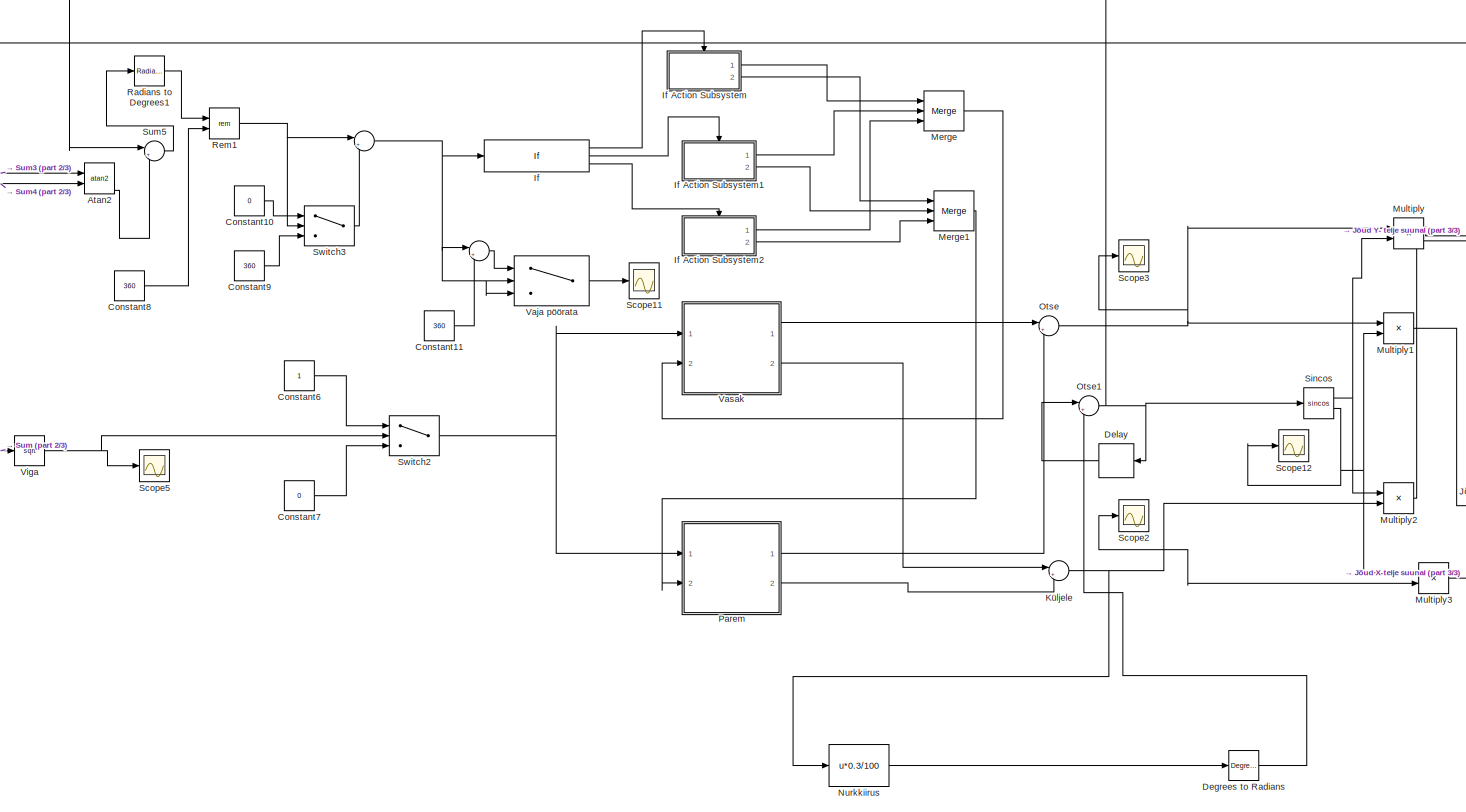
[diagram: root canvas - part 1/3, center side, full height]
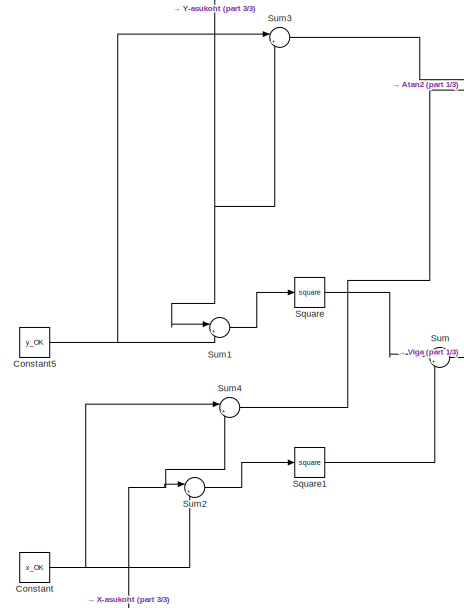
[diagram: root canvas - part 2/3, middle left region]
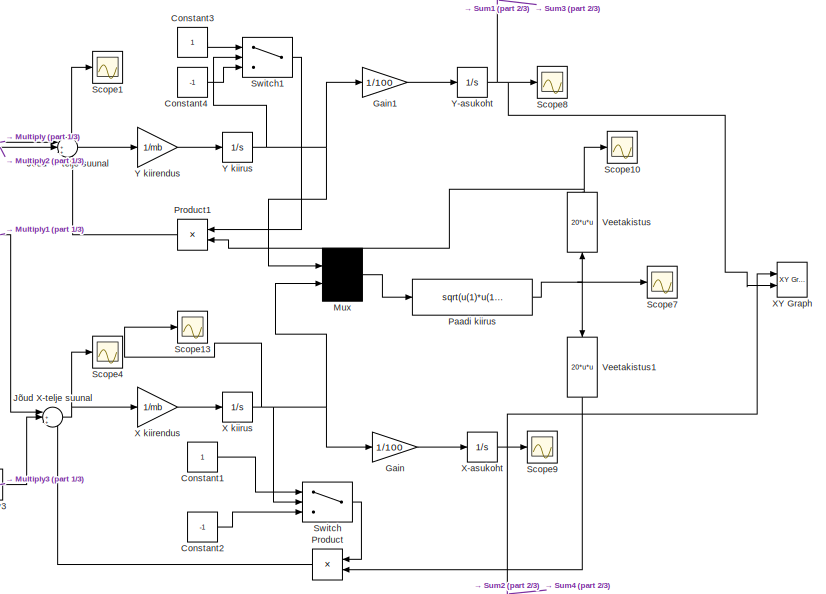
[diagram: root canvas - part 3/3, middle right region]
MODEL slx_333646adffce
KIND model
CONFIG AbsTol = auto
CONFIG EnableMultiTasking = off
CONFIG FixedStep = 1
CONFIG MaxStep = auto
CONFIG MinStep = auto
CONFIG RelTol = 1e-3
CONFIG SampleTimeConstraint = Unconstrained
CONFIG Solver = FixedStepAuto
CONFIG SolverName = FixedStepAuto
CONFIG StartTime = 0.0
CONFIG StopTime = 30000
BLOCK [Sum]  
  IconShape = round
  InputSameDT = off
  Inputs = |++
  OutDataTypeStr = Inherit: Inherit via internal rule
  Ports = [2, 1]
  SaturateOnIntegerOverflow = off
BLOCK [Trigonometry] Atan2
  Operator = atan2
  Ports = [2, 1]
BLOCK [Constant] Constant
  Value = x_OK
BLOCK [Constant] Constant1
BLOCK [Constant] Constant10
  Value = 0
BLOCK [Constant] Constant11
  Value = 360
BLOCK [Constant] Constant2
  Value = -1
BLOCK [Constant] Constant3
BLOCK [Constant] Constant4
  Value = -1
BLOCK [Constant] Constant5
  Value = y_OK
BLOCK [Constant] Constant6
BLOCK [Constant] Constant7
  Value = 0
BLOCK [Constant] Constant8
  Value = 360
BLOCK [Constant] Constant9
  Value = 360
BLOCK [Reference] Degrees to Radians  REF=simulink_extras/Transformations/Degrees to
Radians
  Ports = [1, 1]
  SourceBlock = simulink_extras/Transformations/Degrees to\nRadians
  SourceProductBaseCode = SL
  SourceProductName = Simulink
  SourceType = DegreesToRadians
BLOCK [Delay] Delay
  DelayLength = 1
  InitialCondition = nurk
  InputPortMap = u0
  Ports = [1, 1]
BLOCK [Gain] Gain
  Gain = 1/100
  OutDataTypeStr = Inherit: Inherit via internal rule
  ParamDataTypeStr = Inherit: Inherit via internal rule
  SaturateOnIntegerOverflow = off
BLOCK [Gain] Gain1
  Gain = 1/100
  OutDataTypeStr = Inherit: Inherit via internal rule
  ParamDataTypeStr = Inherit: Inherit via internal rule
  SaturateOnIntegerOverflow = off
BLOCK [If] If
  ElseIfExpressions = u1 >= 180
  IfExpression = u1 < 1 | u1 >359
  Ports = [1, 3]
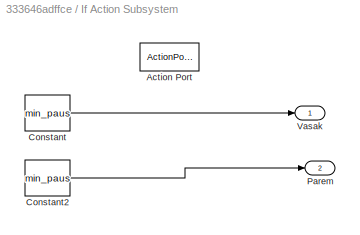
BLOCK [SubSystem] If Action Subsystem
  Ports = [0, 2, 0, 0, 0, 0, 0, 1]
  RequestExecContextInheritance = off
  TreatAsAtomicUnit = on
BLOCK [ActionPort] If Action Subsystem/Action Port
  ActionPortLabel = if(u1 < 1 | u1 >359)
BLOCK [Constant] If Action Subsystem/Constant
  Value = min_paus
BLOCK [Constant] If Action Subsystem/Constant2
  Value = min_paus
BLOCK [Outport] If Action Subsystem/Parem
  IconDisplay = Port number
  Port = 2
BLOCK [Outport] If Action Subsystem/Vasak
  IconDisplay = Port number
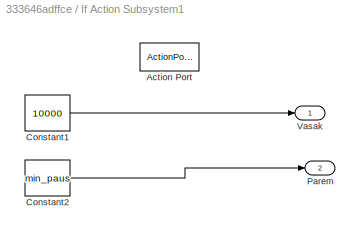
BLOCK [SubSystem] If Action Subsystem1
  Ports = [0, 2, 0, 0, 0, 0, 0, 1]
  RequestExecContextInheritance = off
  TreatAsAtomicUnit = on
BLOCK [ActionPort] If Action Subsystem1/Action Port
  ActionPortLabel = elseif(u1 >= 180)
BLOCK [Constant] If Action Subsystem1/Constant1
  Value = 10000
BLOCK [Constant] If Action Subsystem1/Constant2
  Value = min_paus
BLOCK [Outport] If Action Subsystem1/Parem
  IconDisplay = Port number
  Port = 2
BLOCK [Outport] If Action Subsystem1/Vasak
  IconDisplay = Port number
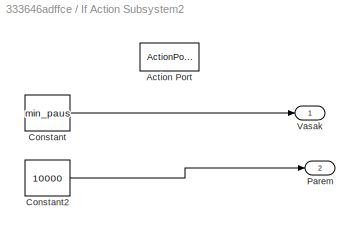
BLOCK [SubSystem] If Action Subsystem2
  Ports = [0, 2, 0, 0, 0, 0, 0, 1]
  RequestExecContextInheritance = off
  TreatAsAtomicUnit = on
BLOCK [ActionPort] If Action Subsystem2/Action Port
  ActionPortLabel = else
BLOCK [Constant] If Action Subsystem2/Constant
  Value = min_paus
BLOCK [Constant] If Action Subsystem2/Constant2
  Value = 10000
BLOCK [Outport] If Action Subsystem2/Parem
  IconDisplay = Port number
  Port = 2
BLOCK [Outport] If Action Subsystem2/Vasak
  IconDisplay = Port number
BLOCK [Sum] Jõud X-telje suunal
  IconShape = round
  InputSameDT = off
  Inputs = |++-
  OutDataTypeStr = Inherit: Inherit via internal rule
  Ports = [3, 1]
  SaturateOnIntegerOverflow = off
BLOCK [Sum] Jõud Y- telje suunal
  IconShape = round
  InputSameDT = off
  Inputs = |++-
  OutDataTypeStr = Inherit: Inherit via internal rule
  Ports = [3, 1]
  SaturateOnIntegerOverflow = off
BLOCK [Sum] Küljele
  IconShape = round
  InputSameDT = off
  Inputs = |++
  OutDataTypeStr = Inherit: Inherit via internal rule
  Ports = [2, 1]
  SaturateOnIntegerOverflow = off
BLOCK [Merge] Merge
  Inputs = 3
  Ports = [3, 1]
BLOCK [Merge] Merge1
  Inputs = 3
  Ports = [3, 1]
BLOCK [Product] Multiply
  InputSameDT = off
  OutDataTypeStr = Inherit: Inherit via internal rule
  Ports = [2, 1]
  RndMeth = Floor
  SaturateOnIntegerOverflow = off
BLOCK [Product] Multiply1
  InputSameDT = off
  OutDataTypeStr = Inherit: Inherit via internal rule
  Ports = [2, 1]
  RndMeth = Floor
  SaturateOnIntegerOverflow = off
BLOCK [Product] Multiply2
  InputSameDT = off
  OutDataTypeStr = Inherit: Inherit via internal rule
  Ports = [2, 1]
  RndMeth = Floor
  SaturateOnIntegerOverflow = off
BLOCK [Product] Multiply3
  InputSameDT = off
  OutDataTypeStr = Inherit: Inherit via internal rule
  Ports = [2, 1]
  RndMeth = Floor
  SaturateOnIntegerOverflow = off
BLOCK [Mux] Mux
  DisplayOption = signals
  Inputs = 2
  Ports = [2, 1]
BLOCK [Fcn] Nurkkiirus
  Expr = u*0.3/100
BLOCK [Sum] Otse
  IconShape = round
  InputSameDT = off
  Inputs = |++
  OutDataTypeStr = Inherit: Inherit via internal rule
  Ports = [2, 1]
  SaturateOnIntegerOverflow = off
BLOCK [Sum] Otse1
  IconShape = round
  InputSameDT = off
  Inputs = |++
  OutDataTypeStr = Inherit: Inherit via internal rule
  Ports = [2, 1]
  SaturateOnIntegerOverflow = off
BLOCK [Fcn] Paadi kiirus
  Expr = sqrt(u(1)*u(1)+u(2)*u(2))
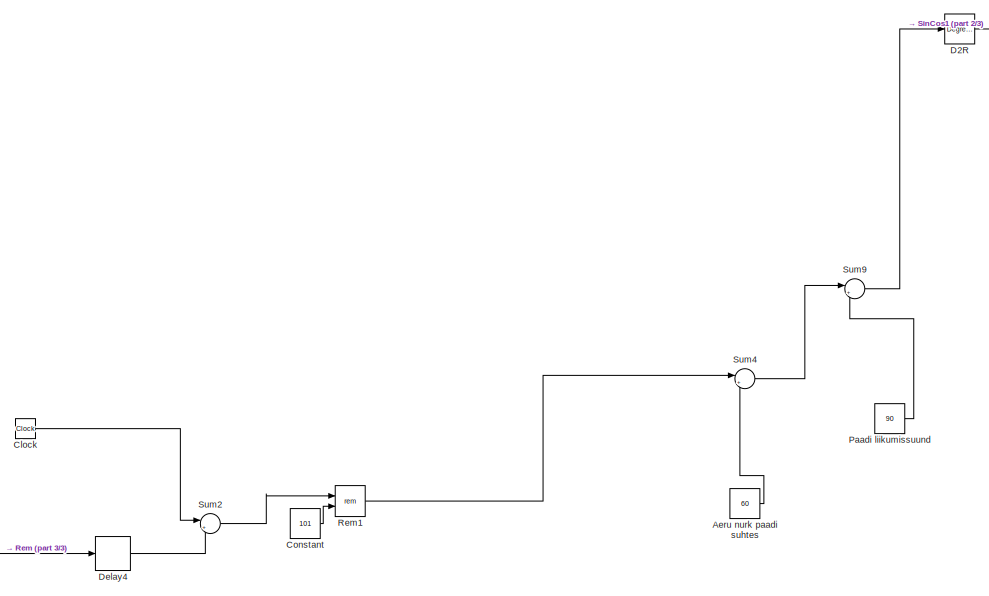
[diagram: Parem - part 1/3, top center region]
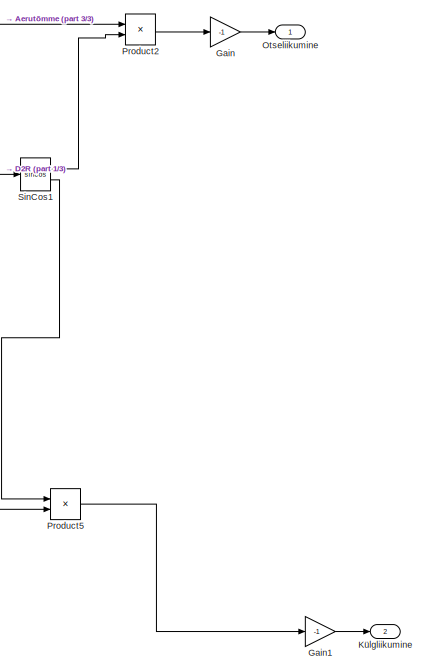
[diagram: Parem - part 2/3, bottom right region]
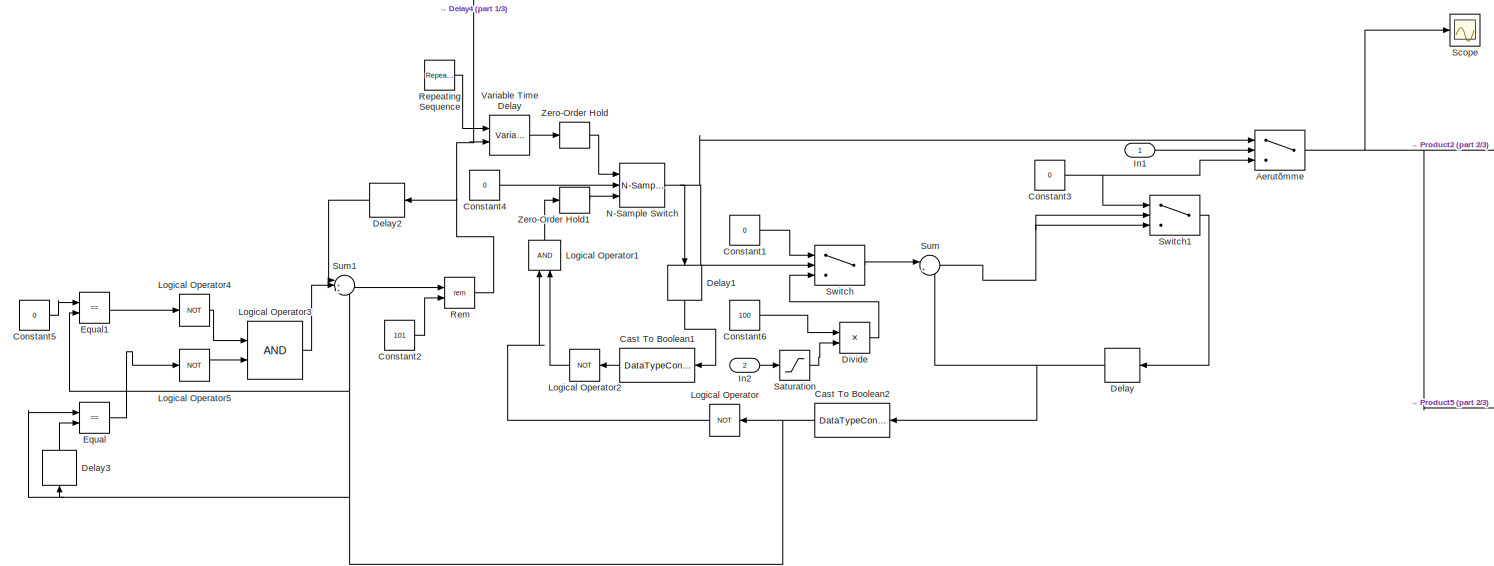
[diagram: Parem - part 3/3, full width, bottom band]
BLOCK [SubSystem] Parem
  Ports = [2, 2]
  RequestExecContextInheritance = off
BLOCK [Constant] Parem/Aeru nurk paadi suhtes
  SampleTime = 1
  Value = 60
BLOCK [Switch] Parem/Aerutõmme
  InputSameDT = off
  SaturateOnIntegerOverflow = off
  Threshold = 1
BLOCK [DataTypeConversion] Parem/Cast To Boolean1
  OutDataTypeStr = boolean
  RndMeth = Floor
  SaturateOnIntegerOverflow = off
BLOCK [DataTypeConversion] Parem/Cast To Boolean2
  OutDataTypeStr = boolean
  RndMeth = Floor
  SaturateOnIntegerOverflow = off
BLOCK [Clock] Parem/Clock
BLOCK [Constant] Parem/Constant
  Value = 101
BLOCK [Constant] Parem/Constant1
  Value = 0
BLOCK [Constant] Parem/Constant2
  SampleTime = 1
  Value = 101
BLOCK [Constant] Parem/Constant3
  Value = 0
BLOCK [Constant] Parem/Constant4
  SampleTime = 1
  Value = 0
BLOCK [Constant] Parem/Constant5
  Value = 0
BLOCK [Constant] Parem/Constant6
  SampleTime = 1
  Value = 100
BLOCK [Reference] Parem/D2R  REF=simulink_extras/Transformations/Degrees to
Radians
  Ports = [1, 1]
  SourceBlock = simulink_extras/Transformations/Degrees to\nRadians
  SourceProductBaseCode = SL
  SourceProductName = Simulink
  SourceType = DegreesToRadians
BLOCK [Delay] Parem/Delay
  DelayLength = 1
  InitialCondition = 0
  InputPortMap = u0
  Ports = [1, 1]
BLOCK [Delay] Parem/Delay1
  DelayLength = 1
  InitialCondition = 0
  InputPortMap = u0
  Ports = [1, 1]
BLOCK [Delay] Parem/Delay2
  DelayLength = 1
  InitialCondition = 0
  InputPortMap = u0
  Ports = [1, 1]
BLOCK [Delay] Parem/Delay3
  DelayLength = 1
  InitialCondition = 0
  InputPortMap = u0
  Ports = [1, 1]
BLOCK [Delay] Parem/Delay4
  DelayLength = 1
  InitialCondition = 0
  InputPortMap = u0
  Ports = [1, 1]
BLOCK [Product] Parem/Divide
  InputSameDT = off
  Inputs = */
  OutDataTypeStr = Inherit: Inherit via internal rule
  Ports = [2, 1]
  RndMeth = Floor
  SaturateOnIntegerOverflow = off
BLOCK [RelationalOperator] Parem/Equal
  InputSameDT = off
  Operator = ==
  OutDataTypeStr = boolean
  Ports = [2, 1]
  RndMeth = Simplest
BLOCK [RelationalOperator] Parem/Equal1
  InputSameDT = off
  Operator = ==
  OutDataTypeStr = boolean
  Ports = [2, 1]
  RndMeth = Simplest
BLOCK [Gain] Parem/Gain
  Gain = -1
  OutDataTypeStr = Inherit: Inherit via internal rule
  ParamDataTypeStr = Inherit: Inherit via internal rule
  SaturateOnIntegerOverflow = off
BLOCK [Gain] Parem/Gain1
  Gain = -1
  OutDataTypeStr = Inherit: Inherit via internal rule
  ParamDataTypeStr = Inherit: Inherit via internal rule
  SaturateOnIntegerOverflow = off
BLOCK [Inport] Parem/In1
  IconDisplay = Port number
BLOCK [Inport] Parem/In2
  IconDisplay = Port number
  Port = 2
BLOCK [Outport] Parem/Külgliikumine
  IconDisplay = Port number
  Port = 2
BLOCK [Logic] Parem/Logical Operator
  AllPortsSameDT = off
  IconShape = distinctive
  Operator = NOT
  OutDataTypeStr = boolean
  Ports = [1, 1]
BLOCK [Logic] Parem/Logical Operator1
  AllPortsSameDT = off
  IconShape = distinctive
  OutDataTypeStr = boolean
  Ports = [2, 1]
BLOCK [Logic] Parem/Logical Operator2
  AllPortsSameDT = off
  IconShape = distinctive
  Operator = NOT
  OutDataTypeStr = boolean
  Ports = [1, 1]
BLOCK [Logic] Parem/Logical Operator3
  AllPortsSameDT = off
  IconShape = distinctive
  OutDataTypeStr = boolean
  Ports = [2, 1]
BLOCK [Logic] Parem/Logical Operator4
  AllPortsSameDT = off
  IconShape = distinctive
  Operator = NOT
  OutDataTypeStr = boolean
  Ports = [1, 1]
BLOCK [Logic] Parem/Logical Operator5
  AllPortsSameDT = off
  IconShape = distinctive
  Operator = NOT
  OutDataTypeStr = boolean
  Ports = [1, 1]
BLOCK [Reference] Parem/N-Sample Switch  REF=dspswit3/N-Sample
Switch
  Ports = [3, 1]
  SourceBlock = dspswit3/N-Sample\nSwitch
  SourceProductBaseCode = DS
  SourceProductName = DSP System Toolbox
  SourceType = N-Sample Switch
BLOCK [Outport] Parem/Otseliikumine
  IconDisplay = Port number
BLOCK [Constant] Parem/Paadi liikumissuund
  SampleTime = 1
  Value = 90
BLOCK [Product] Parem/Product2
  InputSameDT = off
  OutDataTypeStr = Inherit: Inherit via internal rule
  Ports = [2, 1]
  RndMeth = Floor
  SaturateOnIntegerOverflow = off
BLOCK [Product] Parem/Product5
  InputSameDT = off
  OutDataTypeStr = Inherit: Inherit via internal rule
  Ports = [2, 1]
  RndMeth = Floor
  SaturateOnIntegerOverflow = off
BLOCK [Math] Parem/Rem
  Operator = rem
  Ports = [2, 1]
BLOCK [Math] Parem/Rem1
  Operator = rem
  Ports = [2, 1]
BLOCK [Reference] Parem/Repeating Sequence  REF=simulink/Sources/Repeating
Sequence
  Ports = [0, 1]
  SourceBlock = simulink/Sources/Repeating\nSequence
  SourceProductBaseCode = SL
  SourceProductName = Simulink
  SourceType = Repeating table
BLOCK [Saturate] Parem/Saturation
  InputPortMap = u0
  LowerLimit = min_paus
  Ports = [1, 1]
  UpperLimit = 10000
BLOCK [Scope] Parem/Scope
  Floating = off
  NumInputPorts = 1
  Ports = [1]
  ScopeSpecificationString = Simulink.scopes.TimeScopeBlockCfg('CurrentConfiguration', extmgr.ConfigurationSet(extmgr.Configuration('Core','General UI',true),extmgr.Configuration('Core','Source UI',true),extmgr.Configuration('Sources','WiredSimulink',true,'DataLoggingVariableName','ScopeData1'),extmgr.Configuration('Visuals','Time Domain',true,'SerializedDisplays',{struct('MinYLimReal','-72.85099','MaxYLimReal','876.92902','Y...<+1422ch>
BLOCK [Trigonometry] Parem/SinCos1
  Operator = sincos
  Ports = [1, 2]
BLOCK [Sum] Parem/Sum
  IconShape = round
  InputSameDT = off
  Inputs = |++
  OutDataTypeStr = Inherit: Inherit via internal rule
  Ports = [2, 1]
  SaturateOnIntegerOverflow = off
BLOCK [Sum] Parem/Sum1
  IconShape = round
  InputSameDT = off
  Inputs = |+++
  OutDataTypeStr = Inherit: Inherit via internal rule
  Ports = [3, 1]
  SaturateOnIntegerOverflow = off
BLOCK [Sum] Parem/Sum2
  IconShape = round
  InputSameDT = off
  Inputs = |+-
  OutDataTypeStr = Inherit: Inherit via internal rule
  Ports = [2, 1]
  SaturateOnIntegerOverflow = off
BLOCK [Sum] Parem/Sum4
  IconShape = round
  InputSameDT = off
  Inputs = |+-
  OutDataTypeStr = Inherit: Inherit via internal rule
  Ports = [2, 1]
  SaturateOnIntegerOverflow = off
BLOCK [Sum] Parem/Sum9
  IconShape = round
  InputSameDT = off
  Inputs = |+-
  OutDataTypeStr = Inherit: Inherit via internal rule
  Ports = [2, 1]
  SaturateOnIntegerOverflow = off
BLOCK [Switch] Parem/Switch
  Criteria = u2 > Threshold
  InputSameDT = off
  SaturateOnIntegerOverflow = off
BLOCK [Switch] Parem/Switch1
  Criteria = u2 > Threshold
  InputSameDT = off
  SaturateOnIntegerOverflow = off
  Threshold = 100
BLOCK [VariableTransportDelay] Parem/Variable Time Delay
  MaximumDelay = 200
  MaximumPoints = 256
  Ports = [2, 1]
  ZeroDelay = on
BLOCK [ZeroOrderHold] Parem/Zero-Order Hold
BLOCK [ZeroOrderHold] Parem/Zero-Order Hold1
BLOCK [Product] Product
  InputSameDT = off
  OutDataTypeStr = Inherit: Inherit via internal rule
  Ports = [2, 1]
  RndMeth = Floor
  SaturateOnIntegerOverflow = off
BLOCK [Product] Product1
  InputSameDT = off
  OutDataTypeStr = Inherit: Inherit via internal rule
  Ports = [2, 1]
  RndMeth = Floor
  SaturateOnIntegerOverflow = off
BLOCK [Reference] Radians to Degrees1  REF=simulink_extras/Transformations/Radians
to Degrees
  Ports = [1, 1]
  SourceBlock = simulink_extras/Transformations/Radians\nto Degrees
  SourceProductBaseCode = SL
  SourceProductName = Simulink
  SourceType = RadiansToDegrees
BLOCK [Math] Rem1
  Operator = rem
  Ports = [2, 1]
BLOCK [Scope] Scope1
  Floating = off
  NumInputPorts = 1
  Ports = [1]
  ScopeSpecificationString = Simulink.scopes.TimeScopeBlockCfg('CurrentConfiguration', extmgr.ConfigurationSet(extmgr.Configuration('Core','General UI',true),extmgr.Configuration('Core','Source UI',true),extmgr.Configuration('Sources','WiredSimulink',true,'DataLoggingVariableName','ScopeData1'),extmgr.Configuration('Visuals','Time Domain',true,'SerializedDisplays',{struct('MinYLimReal','-1211.15544','MaxYLimReal','1277.60618'...<+1443ch>
BLOCK [Scope] Scope10
  Floating = off
  NumInputPorts = 1
  Ports = [1]
  ScopeSpecificationString = Simulink.scopes.TimeScopeBlockCfg('CurrentConfiguration', extmgr.ConfigurationSet(extmgr.Configuration('Core','General UI',true),extmgr.Configuration('Core','Source UI',true),extmgr.Configuration('Sources','WiredSimulink',true,'DataLoggingVariableName','ScopeData8'),extmgr.Configuration('Visuals','Time Domain',true,'SerializedDisplays',{struct('MinYLimReal','-95.93174','MaxYLimReal','863.38568','Y...<+1422ch>
BLOCK [Scope] Scope11
  Floating = off
  NumInputPorts = 1
  Ports = [1]
  ScopeSpecificationString = Simulink.scopes.TimeScopeBlockCfg('CurrentConfiguration', extmgr.ConfigurationSet(extmgr.Configuration('Core','General UI',true),extmgr.Configuration('Core','Source UI',true),extmgr.Configuration('Sources','WiredSimulink',true,'DataLoggingVariableName','ScopeData2'),extmgr.Configuration('Visuals','Time Domain',true,'SerializedDisplays',{struct('MinYLimReal','-44.86536','MaxYLimReal','404.92027','Y...<+1451ch>
BLOCK [Scope] Scope12
  Floating = off
  NumInputPorts = 1
  Ports = [1]
  ScopeSpecificationString = Simulink.scopes.TimeScopeBlockCfg('CurrentConfiguration', extmgr.ConfigurationSet(extmgr.Configuration('Core','General UI',true),extmgr.Configuration('Core','Source UI',true),extmgr.Configuration('Sources','WiredSimulink',true,'DataLoggingVariableName','ScopeData10'),extmgr.Configuration('Visuals','Time Domain',true,'SerializedDisplays',{struct('MinYLimReal','-1.09939','MaxYLimReal','-0.89939','YL...<+1440ch>
BLOCK [Scope] Scope13
  Floating = off
  NumInputPorts = 1
  Ports = [1]
  ScopeSpecificationString = Simulink.scopes.TimeScopeBlockCfg('CurrentConfiguration', extmgr.ConfigurationSet(extmgr.Configuration('Core','General UI',true),extmgr.Configuration('Core','Source UI',true),extmgr.Configuration('Sources','WiredSimulink',true,'DataLoggingVariableName','ScopeData11'),extmgr.Configuration('Visuals','Time Domain',true,'SerializedDisplays',{struct('MinYLimReal','-4.09995','MaxYLimReal','4.09998','YLa...<+1439ch>
BLOCK [Scope] Scope2
  Floating = off
  NumInputPorts = 1
  Ports = [1]
  ScopeSpecificationString = Simulink.scopes.TimeScopeBlockCfg('CurrentConfiguration', extmgr.ConfigurationSet(extmgr.Configuration('Core','General UI',true),extmgr.Configuration('Core','Source UI',true),extmgr.Configuration('Sources','WiredSimulink',true,'DataLoggingVariableName','ScopeData4'),extmgr.Configuration('Visuals','Time Domain',true,'SerializedDisplays',{struct('MinYLimReal','-1.00000','MaxYLimReal','1.00000','YLab...<+1408ch>
BLOCK [Scope] Scope3
  Floating = off
  NumInputPorts = 1
  Ports = [1]
  ScopeSpecificationString = Simulink.scopes.TimeScopeBlockCfg('CurrentConfiguration', extmgr.ConfigurationSet(extmgr.Configuration('Core','General UI',true),extmgr.Configuration('Core','Source UI',true),extmgr.Configuration('Sources','WiredSimulink',true,'DataLoggingVariableName','ScopeData5'),extmgr.Configuration('Visuals','Time Domain',true,'SerializedDisplays',{struct('MinYLimReal','-2114.67788','MaxYLimReal','1975.31515'...<+1427ch>
BLOCK [Scope] Scope4
  Floating = off
  NumInputPorts = 1
  Ports = [1]
  ScopeSpecificationString = Simulink.scopes.TimeScopeBlockCfg('CurrentConfiguration', extmgr.ConfigurationSet(extmgr.Configuration('Core','General UI',true),extmgr.Configuration('Core','Source UI',true),extmgr.Configuration('Sources','WiredSimulink',true,'DataLoggingVariableName','ScopeData2'),extmgr.Configuration('Visuals','Time Domain',true,'SerializedDisplays',{struct('MinYLimReal','-734.17654','MaxYLimReal','860.71135','...<+1463ch>
BLOCK [Scope] Scope5
  Floating = off
  NumInputPorts = 1
  Ports = [1]
  ScopeSpecificationString = Simulink.scopes.TimeScopeBlockCfg('CurrentConfiguration', extmgr.ConfigurationSet(extmgr.Configuration('Core','General UI',true),extmgr.Configuration('Core','Source UI',true),extmgr.Configuration('Sources','WiredSimulink',true,'DataLoggingVariableName','ScopeData1'),extmgr.Configuration('Visuals','Time Domain',true,'SerializedDisplays',{struct('MinYLimReal','-5.96058','MaxYLimReal','111.7734','YLa...<+1437ch>
BLOCK [Scope] Scope7
  Floating = off
  NumInputPorts = 1
  Ports = [1]
  ScopeSpecificationString = Simulink.scopes.TimeScopeBlockCfg('CurrentConfiguration', extmgr.ConfigurationSet(extmgr.Configuration('Core','General UI',true),extmgr.Configuration('Core','Source UI',true),extmgr.Configuration('Sources','WiredSimulink',true,'DataLoggingVariableName','ScopeData5'),extmgr.Configuration('Visuals','Time Domain',true,'SerializedDisplays',{struct('MinYLimReal','-0.88144','MaxYLimReal','7.93294','YLab...<+1413ch>
BLOCK [Scope] Scope8
  Floating = off
  NumInputPorts = 1
  Ports = [1]
  ScopeSpecificationString = Simulink.scopes.TimeScopeBlockCfg('CurrentConfiguration', extmgr.ConfigurationSet(extmgr.Configuration('Core','General UI',true),extmgr.Configuration('Core','Source UI',true),extmgr.Configuration('Sources','WiredSimulink',true,'DataLoggingVariableName','ScopeData6'),extmgr.Configuration('Visuals','Time Domain',true,'SerializedDisplays',{struct('MinYLimReal','-25.73634','MaxYLimReal','2.85959','YLa...<+1414ch>
BLOCK [Scope] Scope9
  Floating = off
  NumInputPorts = 1
  Ports = [1]
  ScopeSpecificationString = Simulink.scopes.TimeScopeBlockCfg('CurrentConfiguration', extmgr.ConfigurationSet(extmgr.Configuration('Core','General UI',true),extmgr.Configuration('Core','Source UI',true),extmgr.Configuration('Sources','WiredSimulink',true,'DataLoggingVariableName','ScopeData7'),extmgr.Configuration('Visuals','Time Domain',true,'SerializedDisplays',{struct('MinYLimReal','-523.06945','MaxYLimReal','170.62756','...<+1452ch>
BLOCK [Trigonometry] Sincos
  Operator = sincos
  Ports = [1, 2]
BLOCK [Math] Square
  Operator = square
  Ports = [1, 1]
BLOCK [Math] Square1
  Operator = square
  Ports = [1, 1]
BLOCK [Sum] Sum
  IconShape = round
  InputSameDT = off
  Inputs = |++
  OutDataTypeStr = Inherit: Inherit via internal rule
  Ports = [2, 1]
  SaturateOnIntegerOverflow = off
BLOCK [Sum] Sum1
  IconShape = round
  InputSameDT = off
  Inputs = |+-
  OutDataTypeStr = Inherit: Inherit via internal rule
  Ports = [2, 1]
  SaturateOnIntegerOverflow = off
BLOCK [Sum] Sum2
  IconShape = round
  InputSameDT = off
  Inputs = |+-
  OutDataTypeStr = Inherit: Inherit via internal rule
  Ports = [2, 1]
  SaturateOnIntegerOverflow = off
BLOCK [Sum] Sum3
  IconShape = round
  InputSameDT = off
  Inputs = |+-
  OutDataTypeStr = Inherit: Inherit via internal rule
  Ports = [2, 1]
  SaturateOnIntegerOverflow = off
BLOCK [Sum] Sum4
  IconShape = round
  InputSameDT = off
  Inputs = |+-
  OutDataTypeStr = Inherit: Inherit via internal rule
  Ports = [2, 1]
  SaturateOnIntegerOverflow = off
BLOCK [Sum] Sum5
  IconShape = round
  InputSameDT = off
  Inputs = |+-
  OutDataTypeStr = Inherit: Inherit via internal rule
  Ports = [2, 1]
  SaturateOnIntegerOverflow = off
BLOCK [Switch] Switch
  InputSameDT = off
  SaturateOnIntegerOverflow = off
BLOCK [Switch] Switch1
  InputSameDT = off
  SaturateOnIntegerOverflow = off
BLOCK [Switch] Switch2
  InputSameDT = off
  SaturateOnIntegerOverflow = off
  Threshold = 25
BLOCK [Switch] Switch3
  Criteria = u2 > Threshold
  InputSameDT = off
  SaturateOnIntegerOverflow = off
BLOCK [Switch] Vaja pöörata
  Criteria = u2 > Threshold
  InputSameDT = off
  SaturateOnIntegerOverflow = off
  Threshold = 180
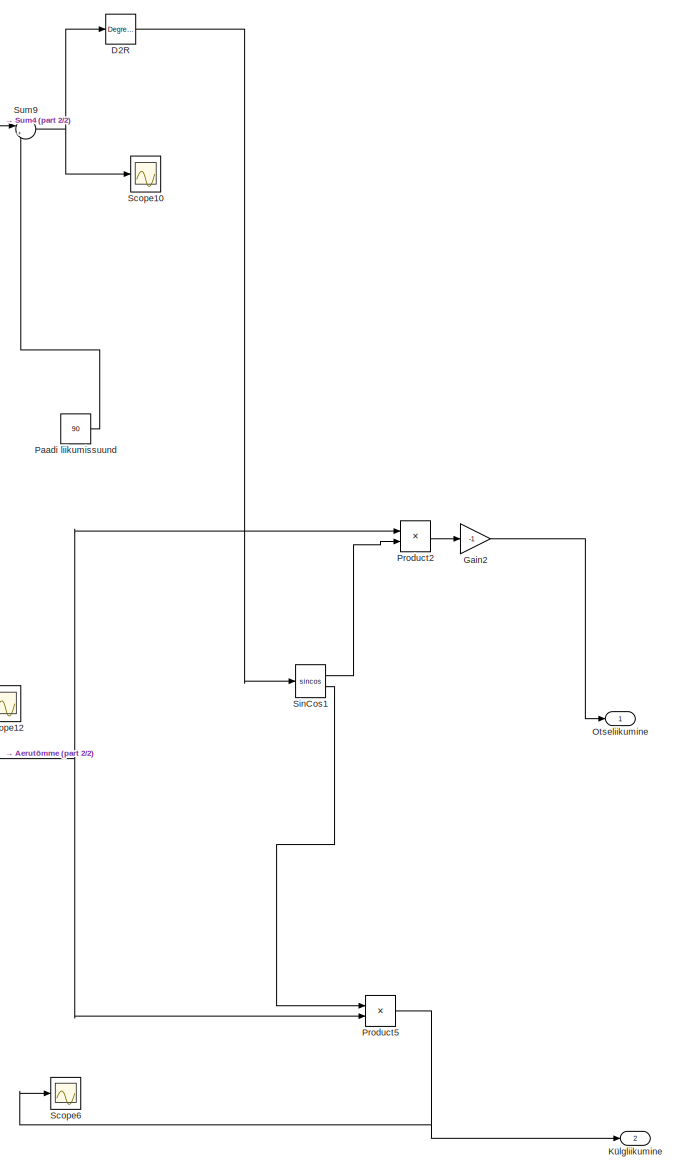
[diagram: Vasak - part 1/2, right side, full height]
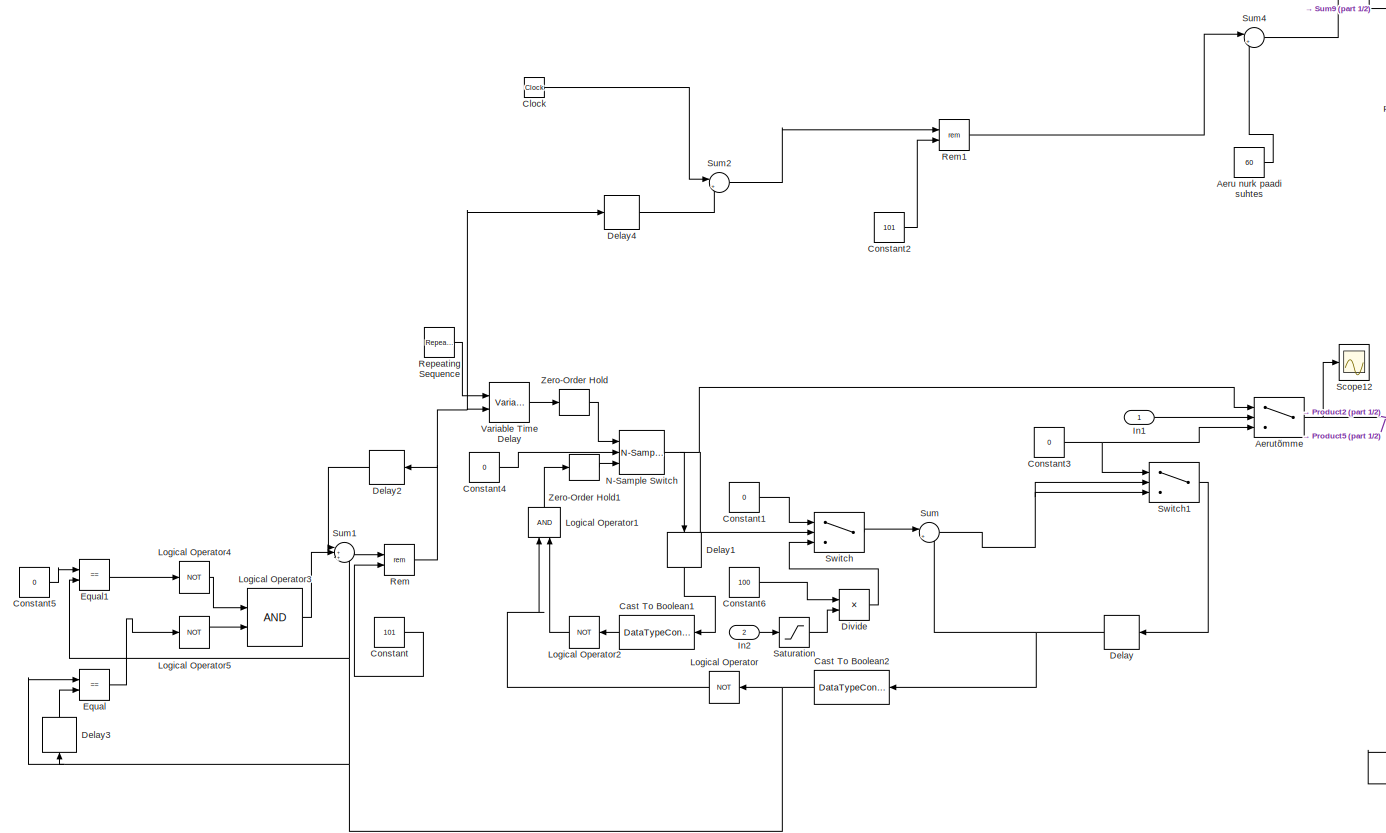
[diagram: Vasak - part 2/2, central region]
BLOCK [SubSystem] Vasak
  Ports = [2, 2]
  RequestExecContextInheritance = off
BLOCK [Constant] Vasak/Aeru nurk paadi suhtes
  SampleTime = 1
  Value = 60
BLOCK [Switch] Vasak/Aerutõmme
  InputSameDT = off
  SaturateOnIntegerOverflow = off
  Threshold = 1
BLOCK [DataTypeConversion] Vasak/Cast To Boolean1
  OutDataTypeStr = boolean
  RndMeth = Floor
  SaturateOnIntegerOverflow = off
BLOCK [DataTypeConversion] Vasak/Cast To Boolean2
  OutDataTypeStr = boolean
  RndMeth = Floor
  SaturateOnIntegerOverflow = off
BLOCK [Clock] Vasak/Clock
BLOCK [Constant] Vasak/Constant
  Value = 101
BLOCK [Constant] Vasak/Constant1
  Value = 0
BLOCK [Constant] Vasak/Constant2
  Value = 101
BLOCK [Constant] Vasak/Constant3
  Value = 0
BLOCK [Constant] Vasak/Constant4
  Value = 0
BLOCK [Constant] Vasak/Constant5
  Value = 0
BLOCK [Constant] Vasak/Constant6
  SampleTime = 1
  Value = 100
BLOCK [Reference] Vasak/D2R  REF=simulink_extras/Transformations/Degrees to
Radians
  Ports = [1, 1]
  SourceBlock = simulink_extras/Transformations/Degrees to\nRadians
  SourceProductBaseCode = SL
  SourceProductName = Simulink
  SourceType = DegreesToRadians
BLOCK [Delay] Vasak/Delay
  DelayLength = 1
  InitialCondition = 0
  InputPortMap = u0
  Ports = [1, 1]
BLOCK [Delay] Vasak/Delay1
  DelayLength = 1
  InitialCondition = 0
  InputPortMap = u0
  Ports = [1, 1]
BLOCK [Delay] Vasak/Delay2
  DelayLength = 1
  InitialCondition = 0
  InputPortMap = u0
  Ports = [1, 1]
BLOCK [Delay] Vasak/Delay3
  DelayLength = 1
  InitialCondition = 0
  InputPortMap = u0
  Ports = [1, 1]
BLOCK [Delay] Vasak/Delay4
  DelayLength = 1
  InitialCondition = 0
  InputPortMap = u0
  Ports = [1, 1]
BLOCK [Product] Vasak/Divide
  InputSameDT = off
  Inputs = */
  OutDataTypeStr = Inherit: Inherit via internal rule
  Ports = [2, 1]
  RndMeth = Floor
  SaturateOnIntegerOverflow = off
BLOCK [RelationalOperator] Vasak/Equal
  InputSameDT = off
  Operator = ==
  OutDataTypeStr = boolean
  Ports = [2, 1]
  RndMeth = Simplest
BLOCK [RelationalOperator] Vasak/Equal1
  InputSameDT = off
  Operator = ==
  OutDataTypeStr = boolean
  Ports = [2, 1]
  RndMeth = Simplest
BLOCK [Gain] Vasak/Gain2
  Gain = -1
  OutDataTypeStr = Inherit: Inherit via internal rule
  ParamDataTypeStr = Inherit: Inherit via internal rule
  SaturateOnIntegerOverflow = off
BLOCK [Inport] Vasak/In1
  IconDisplay = Port number
BLOCK [Inport] Vasak/In2
  IconDisplay = Port number
  Port = 2
BLOCK [Outport] Vasak/Külgliikumine
  IconDisplay = Port number
  Port = 2
BLOCK [Logic] Vasak/Logical Operator
  AllPortsSameDT = off
  IconShape = distinctive
  Operator = NOT
  OutDataTypeStr = boolean
  Ports = [1, 1]
BLOCK [Logic] Vasak/Logical Operator1
  AllPortsSameDT = off
  IconShape = distinctive
  OutDataTypeStr = boolean
  Ports = [2, 1]
BLOCK [Logic] Vasak/Logical Operator2
  AllPortsSameDT = off
  IconShape = distinctive
  Operator = NOT
  OutDataTypeStr = boolean
  Ports = [1, 1]
BLOCK [Logic] Vasak/Logical Operator3
  AllPortsSameDT = off
  IconShape = distinctive
  OutDataTypeStr = boolean
  Ports = [2, 1]
BLOCK [Logic] Vasak/Logical Operator4
  AllPortsSameDT = off
  IconShape = distinctive
  Operator = NOT
  OutDataTypeStr = boolean
  Ports = [1, 1]
BLOCK [Logic] Vasak/Logical Operator5
  AllPortsSameDT = off
  IconShape = distinctive
  Operator = NOT
  OutDataTypeStr = boolean
  Ports = [1, 1]
BLOCK [Reference] Vasak/N-Sample Switch  REF=dspswit3/N-Sample
Switch
  Ports = [3, 1]
  SourceBlock = dspswit3/N-Sample\nSwitch
  SourceProductBaseCode = DS
  SourceProductName = DSP System Toolbox
  SourceType = N-Sample Switch
BLOCK [Outport] Vasak/Otseliikumine
  IconDisplay = Port number
BLOCK [Constant] Vasak/Paadi liikumissuund
  SampleTime = 1
  Value = 90
BLOCK [Product] Vasak/Product2
  InputSameDT = off
  OutDataTypeStr = Inherit: Inherit via internal rule
  Ports = [2, 1]
  RndMeth = Floor
  SaturateOnIntegerOverflow = off
BLOCK [Product] Vasak/Product5
  InputSameDT = off
  OutDataTypeStr = Inherit: Inherit via internal rule
  Ports = [2, 1]
  RndMeth = Floor
  SaturateOnIntegerOverflow = off
BLOCK [Math] Vasak/Rem
  Operator = rem
  Ports = [2, 1]
BLOCK [Math] Vasak/Rem1
  Operator = rem
  Ports = [2, 1]
BLOCK [Reference] Vasak/Repeating Sequence  REF=simulink/Sources/Repeating
Sequence
  Ports = [0, 1]
  SourceBlock = simulink/Sources/Repeating\nSequence
  SourceProductBaseCode = SL
  SourceProductName = Simulink
  SourceType = Repeating table
BLOCK [Saturate] Vasak/Saturation
  InputPortMap = u0
  LowerLimit = min_paus
  Ports = [1, 1]
  UpperLimit = 100000
BLOCK [Scope] Vasak/Scope10
  Floating = off
  NumInputPorts = 1
  Ports = [1]
  ScopeSpecificationString = Simulink.scopes.TimeScopeBlockCfg('CurrentConfiguration', extmgr.ConfigurationSet(extmgr.Configuration('Core','General UI',true),extmgr.Configuration('Core','Source UI',true),extmgr.Configuration('Sources','WiredSimulink',true,'DataLoggingVariableName','ScopeData1'),extmgr.Configuration('Visuals','Time Domain',true,'SerializedDisplays',{struct('MinYLimReal','-162.5','MaxYLimReal','-37.5','YLabelRe...<+1423ch>
BLOCK [Scope] Vasak/Scope12
  Floating = off
  NumInputPorts = 1
  Ports = [1]
  ScopeSpecificationString = Simulink.scopes.TimeScopeBlockCfg('CurrentConfiguration', extmgr.ConfigurationSet(extmgr.Configuration('Core','General UI',true),extmgr.Configuration('Core','Source UI',true),extmgr.Configuration('Sources','WiredSimulink',true,'DataLoggingVariableName','ScopeData3'),extmgr.Configuration('Visuals','Time Domain',true,'SerializedDisplays',{struct('MinYLimReal','-105.75','MaxYLimReal','951.75','YLabel...<+1434ch>
BLOCK [Scope] Vasak/Scope6
  Floating = off
  NumInputPorts = 1
  Ports = [1]
  ScopeSpecificationString = Simulink.scopes.TimeScopeBlockCfg('CurrentConfiguration', extmgr.ConfigurationSet(extmgr.Configuration('Core','General UI',true),extmgr.Configuration('Core','Source UI',true),extmgr.Configuration('Sources','WiredSimulink',true,'DataLoggingVariableName','ScopeData3'),extmgr.Configuration('Visuals','Time Domain',true,'SerializedDisplays',{struct('MinYLimReal','-397.44312','MaxYLimReal','178.00689','...<+1451ch>
BLOCK [Trigonometry] Vasak/SinCos1
  Operator = sincos
  Ports = [1, 2]
BLOCK [Sum] Vasak/Sum
  IconShape = round
  InputSameDT = off
  Inputs = |++
  OutDataTypeStr = Inherit: Inherit via internal rule
  Ports = [2, 1]
  SaturateOnIntegerOverflow = off
BLOCK [Sum] Vasak/Sum1
  IconShape = round
  InputSameDT = off
  Inputs = |+++
  OutDataTypeStr = Inherit: Inherit via internal rule
  Ports = [3, 1]
  SaturateOnIntegerOverflow = off
BLOCK [Sum] Vasak/Sum2
  IconShape = round
  InputSameDT = off
  Inputs = |+-
  OutDataTypeStr = Inherit: Inherit via internal rule
  Ports = [2, 1]
  SaturateOnIntegerOverflow = off
BLOCK [Sum] Vasak/Sum4
  IconShape = round
  InputSameDT = off
  Inputs = |+-
  OutDataTypeStr = Inherit: Inherit via internal rule
  Ports = [2, 1]
  SaturateOnIntegerOverflow = off
BLOCK [Sum] Vasak/Sum9
  IconShape = round
  InputSameDT = off
  Inputs = |+-
  OutDataTypeStr = Inherit: Inherit via internal rule
  Ports = [2, 1]
  SaturateOnIntegerOverflow = off
BLOCK [Switch] Vasak/Switch
  Criteria = u2 > Threshold
  InputSameDT = off
  SaturateOnIntegerOverflow = off
BLOCK [Switch] Vasak/Switch1
  Criteria = u2 > Threshold
  InputSameDT = off
  SaturateOnIntegerOverflow = off
  Threshold = 100
BLOCK [VariableTransportDelay] Vasak/Variable Time Delay
  MaximumDelay = 200
  MaximumPoints = 256
  Ports = [2, 1]
  ZeroDelay = on
BLOCK [ZeroOrderHold] Vasak/Zero-Order Hold
BLOCK [ZeroOrderHold] Vasak/Zero-Order Hold1
BLOCK [Fcn] Veetakistus
  Expr = 20*u*u
BLOCK [Fcn] Veetakistus1
  Expr = 20*u*u
BLOCK [Sqrt] Viga
  OutputSignalType = real
BLOCK [Gain] X kiirendus
  Gain = 1/mb
  OutDataTypeStr = Inherit: Inherit via internal rule
  ParamDataTypeStr = Inherit: Inherit via internal rule
  SaturateOnIntegerOverflow = off
BLOCK [Integrator] X kiirus
  InitialCondition = vx_0
  Ports = [1, 1]
BLOCK [Integrator] X-asukoht
  InitialCondition = x_0
  Ports = [1, 1]
BLOCK [Reference] XY Graph  REF=simulink/Sinks/XY Graph
  Commented = on
  Ports = [2]
  SourceBlock = simulink/Sinks/XY Graph
  SourceProductBaseCode = SL
  SourceProductName = Simulink
  SourceType = XY scope.
BLOCK [Gain] Y kiirendus
  Gain = 1/mb
  OutDataTypeStr = Inherit: Inherit via internal rule
  ParamDataTypeStr = Inherit: Inherit via internal rule
  SaturateOnIntegerOverflow = off
BLOCK [Integrator] Y kiirus
  InitialCondition = vy_0
  Ports = [1, 1]
BLOCK [Integrator] Y-asukoht
  InitialCondition = y_0
  Ports = [1, 1]
NET  :1 ->  :1, If:1, Vaja pöörata:1, Vaja pöörata:2, Vaja pöörata:3
LINE Atan2:1 -> Sum5:2
LINE Constant10:1 -> Switch3:1
LINE Constant11:1 ->  :2
LINE Constant1:1 -> Switch:1
LINE Constant2:1 -> Switch:3
LINE Constant3:1 -> Switch1:1
LINE Constant4:1 -> Switch1:3
NET Constant5:1 -> Sum1:2, Sum3:1
LINE Constant6:1 -> Switch2:1
LINE Constant7:1 -> Switch2:3
LINE Constant8:1 -> Rem1:2
LINE Constant9:1 -> Switch3:3
NET Constant:1 -> Sum2:2, Sum4:1
LINE Degrees to Radians:1 -> Otse1:2
LINE Delay:1 -> Otse1:1
LINE Gain1:1 -> Y-asukoht:1
LINE Gain:1 -> X-asukoht:1
LINE If Action Subsystem/Constant2:1 -> If Action Subsystem/Parem:1
LINE If Action Subsystem/Constant:1 -> If Action Subsystem/Vasak:1
LINE If Action Subsystem1/Constant1:1 -> If Action Subsystem1/Vasak:1
LINE If Action Subsystem1/Constant2:1 -> If Action Subsystem1/Parem:1
LINE If Action Subsystem1:1 -> Merge:2
LINE If Action Subsystem1:2 -> Merge1:2
LINE If Action Subsystem2/Constant2:1 -> If Action Subsystem2/Parem:1
LINE If Action Subsystem2/Constant:1 -> If Action Subsystem2/Vasak:1
LINE If Action Subsystem2:1 -> Merge:3
LINE If Action Subsystem2:2 -> Merge1:3
LINE If Action Subsystem:1 -> Merge:1
LINE If Action Subsystem:2 -> Merge1:1
LINE If:1 -> If Action Subsystem:ifaction
LINE If:2 -> If Action Subsystem1:ifaction
LINE If:3 -> If Action Subsystem2:ifaction
NET Jõud X-telje suunal:1 -> Scope4:1, X kiirendus:1
NET Jõud Y- telje suunal:1 -> Scope1:1, Y kiirendus:1
NET Küljele:1 -> Multiply2:2, Multiply3:2, Nurkkiirus:1, Scope2:1
LINE Merge1:1 -> Parem:2
LINE Merge:1 -> Vasak:2
LINE Multiply1:1 -> Jõud X-telje suunal:1
LINE Multiply2:1 -> Jõud Y- telje suunal:2
LINE Multiply3:1 -> Jõud X-telje suunal:2
LINE Multiply:1 -> Jõud Y- telje suunal:1
LINE Mux:1 -> Paadi kiirus:1
LINE Nurkkiirus:1 -> Degrees to Radians:1
NET Otse1:1 -> Delay:1, Sincos:1, Sum5:1
NET Otse:1 -> Multiply1:1, Multiply:1, Scope3:1
NET Paadi kiirus:1 -> Scope7:1, Veetakistus1:1, Veetakistus:1
LINE Parem/Aeru nurk paadi suhtes:1 -> Parem/Sum4:2
NET Parem/Aerutõmme:1 -> Parem/Product2:1, Parem/Product5:2, Parem/Scope:1
LINE Parem/Cast To Boolean1:1 -> Parem/Logical Operator2:1
NET Parem/Cast To Boolean2:1 -> Parem/Delay3:1, Parem/Equal1:2, Parem/Equal:1, Parem/Logical Operator:1, Parem/Sum1:3
LINE Parem/Clock:1 -> Parem/Sum2:1
LINE Parem/Constant1:1 -> Parem/Switch:1
LINE Parem/Constant2:1 -> Parem/Rem:2
NET Parem/Constant3:1 -> Parem/Aerutõmme:3, Parem/Switch1:1
LINE Parem/Constant4:1 -> Parem/N-Sample Switch:2
LINE Parem/Constant5:1 -> Parem/Equal1:1
LINE Parem/Constant6:1 -> Parem/Divide:1
LINE Parem/Constant:1 -> Parem/Rem1:2
LINE Parem/D2R:1 -> Parem/SinCos1:1
LINE Parem/Delay1:1 -> Parem/Cast To Boolean1:1
LINE Parem/Delay2:1 -> Parem/Sum1:1
LINE Parem/Delay3:1 -> Parem/Equal:2
LINE Parem/Delay4:1 -> Parem/Sum2:2
NET Parem/Delay:1 -> Parem/Cast To Boolean2:1, Parem/Sum:2
LINE Parem/Divide:1 -> Parem/Switch:3
LINE Parem/Equal1:1 -> Parem/Logical Operator4:1
LINE Parem/Equal:1 -> Parem/Logical Operator5:1
LINE Parem/Gain1:1 -> Parem/Külgliikumine:1
LINE Parem/Gain:1 -> Parem/Otseliikumine:1
LINE Parem/In1:1 -> Parem/Aerutõmme:2
LINE Parem/In2:1 -> Parem/Saturation:1
LINE Parem/Logical Operator1:1 -> Parem/Zero-Order Hold1:1
LINE Parem/Logical Operator2:1 -> Parem/Logical Operator1:2
LINE Parem/Logical Operator3:1 -> Parem/Sum1:2
LINE Parem/Logical Operator4:1 -> Parem/Logical Operator3:1
LINE Parem/Logical Operator5:1 -> Parem/Logical Operator3:2
LINE Parem/Logical Operator:1 -> Parem/Logical Operator1:1
NET Parem/N-Sample Switch:1 -> Parem/Aerutõmme:1, Parem/Delay1:1, Parem/Switch:2
LINE Parem/Paadi liikumissuund:1 -> Parem/Sum9:2
LINE Parem/Product2:1 -> Parem/Gain:1
LINE Parem/Product5:1 -> Parem/Gain1:1
LINE Parem/Rem1:1 -> Parem/Sum4:1
NET Parem/Rem:1 -> Parem/Delay2:1, Parem/Delay4:1, Parem/Variable Time Delay:2
LINE Parem/Repeating Sequence:1 -> Parem/Variable Time Delay:1
LINE Parem/Saturation:1 -> Parem/Divide:2
LINE Parem/SinCos1:1 -> Parem/Product2:2
LINE Parem/SinCos1:2 -> Parem/Product5:1
LINE Parem/Sum1:1 -> Parem/Rem:1
LINE Parem/Sum2:1 -> Parem/Rem1:1
LINE Parem/Sum4:1 -> Parem/Sum9:1
LINE Parem/Sum9:1 -> Parem/D2R:1
NET Parem/Sum:1 -> Parem/Switch1:2, Parem/Switch1:3
LINE Parem/Switch1:1 -> Parem/Delay:1
LINE Parem/Switch:1 -> Parem/Sum:1
LINE Parem/Variable Time Delay:1 -> Parem/Zero-Order Hold:1
LINE Parem/Zero-Order Hold1:1 -> Parem/N-Sample Switch:3
LINE Parem/Zero-Order Hold:1 -> Parem/N-Sample Switch:1
LINE Parem:1 -> Otse:2
LINE Parem:2 -> Küljele:2
LINE Product1:1 -> Jõud Y- telje suunal:3
LINE Product:1 -> Jõud X-telje suunal:3
LINE Radians to Degrees1:1 -> Rem1:1
NET Rem1:1 ->  :1, Switch3:2
NET Sincos:1 -> Multiply2:1, Multiply:2
NET Sincos:2 -> Multiply1:2, Multiply3:1, Scope12:1
LINE Square1:1 -> Sum:2
LINE Square:1 -> Sum:1
LINE Sum1:1 -> Square:1
LINE Sum2:1 -> Square1:1
LINE Sum3:1 -> Atan2:1
LINE Sum4:1 -> Atan2:2
LINE Sum5:1 -> Radians to Degrees1:1
LINE Sum:1 -> Viga:1
LINE Switch1:1 -> Product1:1
NET Switch2:1 -> Parem:1, Vasak:1
LINE Switch3:1 ->  :2
LINE Switch:1 -> Product:1
LINE Vaja pöörata:1 -> Scope11:1
LINE Vasak/Aeru nurk paadi suhtes:1 -> Vasak/Sum4:2
NET Vasak/Aerutõmme:1 -> Vasak/Product2:1, Vasak/Product5:2, Vasak/Scope12:1
LINE Vasak/Cast To Boolean1:1 -> Vasak/Logical Operator2:1
NET Vasak/Cast To Boolean2:1 -> Vasak/Delay3:1, Vasak/Equal1:2, Vasak/Equal:1, Vasak/Logical Operator:1, Vasak/Sum1:3
LINE Vasak/Clock:1 -> Vasak/Sum2:1
LINE Vasak/Constant1:1 -> Vasak/Switch:1
LINE Vasak/Constant2:1 -> Vasak/Rem1:2
NET Vasak/Constant3:1 -> Vasak/Aerutõmme:3, Vasak/Switch1:1
LINE Vasak/Constant4:1 -> Vasak/N-Sample Switch:2
LINE Vasak/Constant5:1 -> Vasak/Equal1:1
LINE Vasak/Constant6:1 -> Vasak/Divide:1
LINE Vasak/Constant:1 -> Vasak/Rem:2
LINE Vasak/D2R:1 -> Vasak/SinCos1:1
LINE Vasak/Delay1:1 -> Vasak/Cast To Boolean1:1
LINE Vasak/Delay2:1 -> Vasak/Sum1:1
LINE Vasak/Delay3:1 -> Vasak/Equal:2
LINE Vasak/Delay4:1 -> Vasak/Sum2:2
NET Vasak/Delay:1 -> Vasak/Cast To Boolean2:1, Vasak/Sum:2
LINE Vasak/Divide:1 -> Vasak/Switch:3
LINE Vasak/Equal1:1 -> Vasak/Logical Operator4:1
LINE Vasak/Equal:1 -> Vasak/Logical Operator5:1
LINE Vasak/Gain2:1 -> Vasak/Otseliikumine:1
LINE Vasak/In1:1 -> Vasak/Aerutõmme:2
LINE Vasak/In2:1 -> Vasak/Saturation:1
LINE Vasak/Logical Operator1:1 -> Vasak/Zero-Order Hold1:1
LINE Vasak/Logical Operator2:1 -> Vasak/Logical Operator1:2
LINE Vasak/Logical Operator3:1 -> Vasak/Sum1:2
LINE Vasak/Logical Operator4:1 -> Vasak/Logical Operator3:1
LINE Vasak/Logical Operator5:1 -> Vasak/Logical Operator3:2
LINE Vasak/Logical Operator:1 -> Vasak/Logical Operator1:1
NET Vasak/N-Sample Switch:1 -> Vasak/Aerutõmme:1, Vasak/Delay1:1, Vasak/Switch:2
LINE Vasak/Paadi liikumissuund:1 -> Vasak/Sum9:2
LINE Vasak/Product2:1 -> Vasak/Gain2:1
NET Vasak/Product5:1 -> Vasak/Külgliikumine:1, Vasak/Scope6:1
LINE Vasak/Rem1:1 -> Vasak/Sum4:1
NET Vasak/Rem:1 -> Vasak/Delay2:1, Vasak/Delay4:1, Vasak/Variable Time Delay:2
LINE Vasak/Repeating Sequence:1 -> Vasak/Variable Time Delay:1
LINE Vasak/Saturation:1 -> Vasak/Divide:2
LINE Vasak/SinCos1:1 -> Vasak/Product2:2
LINE Vasak/SinCos1:2 -> Vasak/Product5:1
LINE Vasak/Sum1:1 -> Vasak/Rem:1
LINE Vasak/Sum2:1 -> Vasak/Rem1:1
LINE Vasak/Sum4:1 -> Vasak/Sum9:1
NET Vasak/Sum9:1 -> Vasak/D2R:1, Vasak/Scope10:1
NET Vasak/Sum:1 -> Vasak/Switch1:2, Vasak/Switch1:3
LINE Vasak/Switch1:1 -> Vasak/Delay:1
LINE Vasak/Switch:1 -> Vasak/Sum:1
LINE Vasak/Variable Time Delay:1 -> Vasak/Zero-Order Hold:1
LINE Vasak/Zero-Order Hold1:1 -> Vasak/N-Sample Switch:3
LINE Vasak/Zero-Order Hold:1 -> Vasak/N-Sample Switch:1
LINE Vasak:1 -> Otse:1
LINE Vasak:2 -> Küljele:1
LINE Veetakistus1:1 -> Product:2
NET Veetakistus:1 -> Product1:2, Scope10:1
NET Viga:1 -> Scope5:1, Switch2:2
LINE X kiirendus:1 -> X kiirus:1
NET X kiirus:1 -> Gain:1, Mux:2, Scope13:1, Switch:2
NET X-asukoht:1 -> Scope9:1, Sum2:1, Sum4:2, XY Graph:1
LINE Y kiirendus:1 -> Y kiirus:1
NET Y kiirus:1 -> Gain1:1, Mux:1, Switch1:2
NET Y-asukoht:1 -> Scope8:1, Sum1:1, Sum3:2, XY Graph:2
note: NET lines group one-source signal fan-out (src -> all destinations, sorted); 1:1 wires keep LINE
